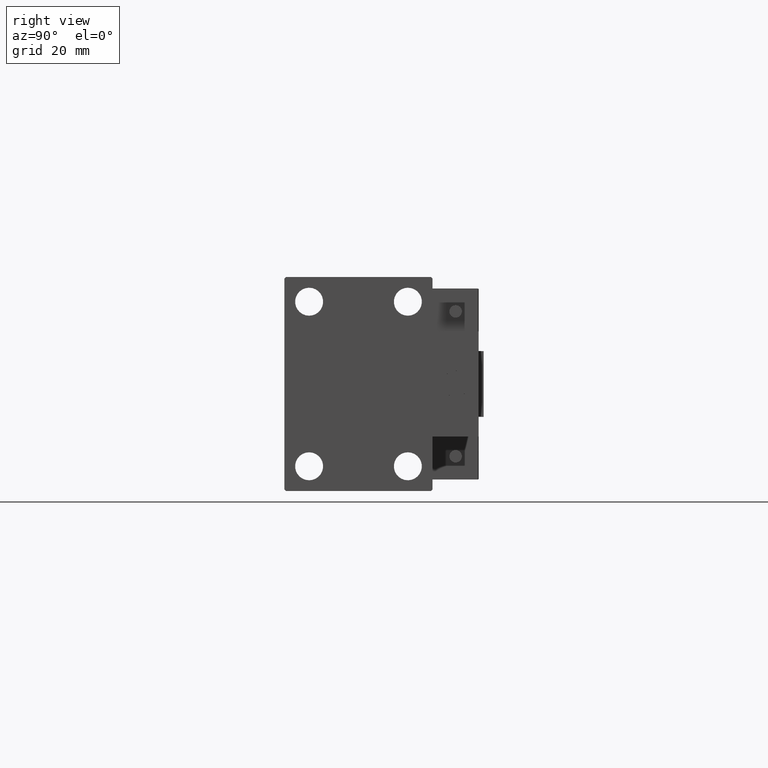
[diagram: clean part render]
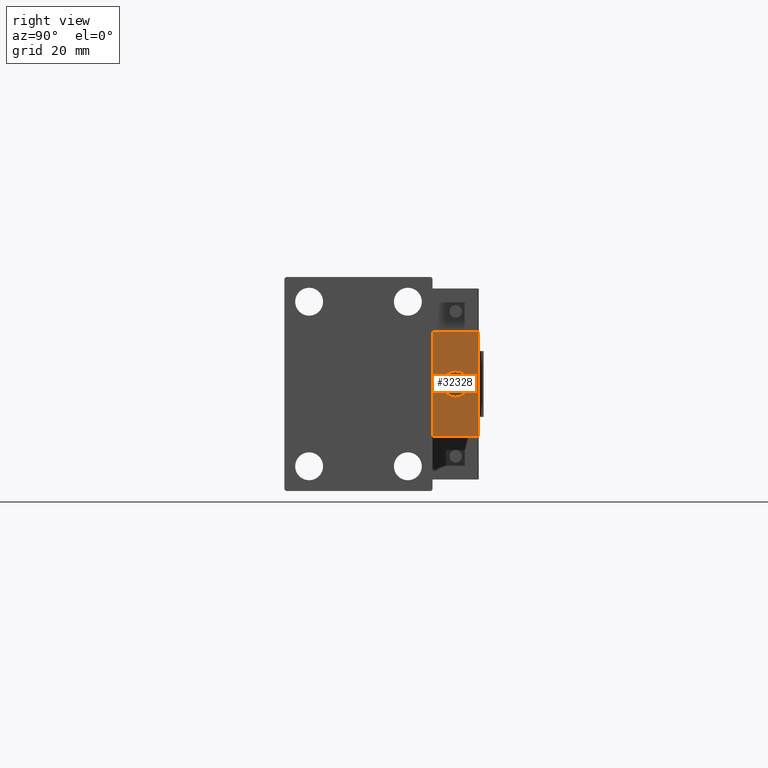
[diagram: same view with one face highlighted and labeled with its STEP entity id]
A machine part, right view. The second image highlights one B-rep face of the part: STEP entity #32328.
In plain terms, the highlighted planar face has unit normal (-1, 0, 0).
Its self-contained STEP definition (entity closure, byte-faithful):
#315 = CARTESIAN_POINT ( 'NONE',  ( 10.00000000000000000, 7.000000000000000000, 15.99999999999999289 ) ) ;
#864 = ORIENTED_EDGE ( 'NONE', *, *, #25652, .T. ) ;
#2336 = DIRECTION ( 'NONE',  ( 0.000000000000000000, 0.000000000000000000, -1.000000000000000000 ) ) ;
#2834 = DIRECTION ( 'NONE',  ( -1.000000000000000000, 0.000000000000000000, 0.000000000000000000 ) ) ;
#3563 = CIRCLE ( 'NONE', #5197, 4.000000000000000000 ) ;
#3848 = DIRECTION ( 'NONE',  ( 0.000000000000000000, -1.000000000000000000, 0.000000000000000000 ) ) ;
#4280 = VECTOR ( 'NONE', #12908, 1000.000000000000000 ) ;
#4984 = DIRECTION ( 'NONE',  ( -0.000000000000000000, 0.000000000000000000, 1.000000000000000000 ) ) ;
#5197 = AXIS2_PLACEMENT_3D ( 'NONE', #15035, #2834, #19360 ) ;
#8806 = CARTESIAN_POINT ( 'NONE',  ( 10.00000000000000000, 0.000000000000000000, 0.000000000000000000 ) ) ;
#9729 = VECTOR ( 'NONE', #30627, 1000.000000000000000 ) ;
#12141 = CARTESIAN_POINT ( 'NONE',  ( 10.00000000000000000, 4.898587196589412829E-16, -4.000000000000000000 ) ) ;
#12634 = FACE_OUTER_BOUND ( 'NONE', #21205, .T. ) ;
#12908 = DIRECTION ( 'NONE',  ( 0.000000000000000000, 0.000000000000000000, -1.000000000000000000 ) ) ;
#13143 = AXIS2_PLACEMENT_3D ( 'NONE', #34625, #31565, #42001 ) ;
#13807 = VERTEX_POINT ( 'NONE', #27082 ) ;
#13914 = CARTESIAN_POINT ( 'NONE',  ( 10.00000000000000000, 7.000000000000000000, -16.00000000000000711 ) ) ;
#15035 = CARTESIAN_POINT ( 'NONE',  ( 10.00000000000000000, 0.000000000000000000, 0.000000000000000000 ) ) ;
#16377 = VERTEX_POINT ( 'NONE', #20024 ) ;
#16620 = AXIS2_PLACEMENT_3D ( 'NONE', #8806, #39884, #4984 ) ;
#18989 = CARTESIAN_POINT ( 'NONE',  ( 10.00000000000000000, -7.000000000000000000, 15.99999999999999289 ) ) ;
#19360 = DIRECTION ( 'NONE',  ( 0.000000000000000000, 0.000000000000000000, 1.000000000000000000 ) ) ;
#20024 = CARTESIAN_POINT ( 'NONE',  ( 10.00000000000000000, 0.000000000000000000, 4.000000000000000000 ) ) ;
#21205 = EDGE_LOOP ( 'NONE', ( #37828, #42301, #22636, #29866 ) ) ;
#21650 = EDGE_CURVE ( 'NONE', #13807, #44799, #42065, .T. ) ;
#22107 = VECTOR ( 'NONE', #3848, 1000.000000000000000 ) ;
#22490 = EDGE_LOOP ( 'NONE', ( #31650, #864 ) ) ;
#22636 = ORIENTED_EDGE ( 'NONE', *, *, #46773, .F. ) ;
#23748 = VECTOR ( 'NONE', #2336, 1000.000000000000000 ) ;
#25652 = EDGE_CURVE ( 'NONE', #45892, #16377, #26175, .T. ) ;
#26175 = CIRCLE ( 'NONE', #13143, 4.000000000000000000 ) ;
#27082 = CARTESIAN_POINT ( 'NONE',  ( 10.00000000000000000, 7.000000000000000000, 15.99999999999999289 ) ) ;
#27106 = VERTEX_POINT ( 'NONE', #36017 ) ;
#27979 = LINE ( 'NONE', #32288, #4280 ) ;
#28199 = PLANE ( 'NONE',  #16620 ) ;
#28749 = VERTEX_POINT ( 'NONE', #13914 ) ;
#29332 = CARTESIAN_POINT ( 'NONE',  ( 10.00000000000000000, -7.000000000000000000, 15.99999999999999289 ) ) ;
#29866 = ORIENTED_EDGE ( 'NONE', *, *, #21650, .T. ) ;
#30627 = DIRECTION ( 'NONE',  ( 0.000000000000000000, -1.000000000000000000, 0.000000000000000000 ) ) ;
#31565 = DIRECTION ( 'NONE',  ( -1.000000000000000000, 0.000000000000000000, 0.000000000000000000 ) ) ;
#31650 = ORIENTED_EDGE ( 'NONE', *, *, #49189, .T. ) ;
#32288 = CARTESIAN_POINT ( 'NONE',  ( 10.00000000000000000, 7.000000000000000000, 15.99999999999999289 ) ) ;
#32328 = ADVANCED_FACE ( 'NONE', ( #35812, #12634 ), #28199, .F. ) ;
#34431 = LINE ( 'NONE', #49945, #22107 ) ;
#34625 = CARTESIAN_POINT ( 'NONE',  ( 10.00000000000000000, 0.000000000000000000, 0.000000000000000000 ) ) ;
#35812 = FACE_BOUND ( 'NONE', #22490, .T. ) ;
#36017 = CARTESIAN_POINT ( 'NONE',  ( 10.00000000000000000, -7.000000000000000000, -16.00000000000000711 ) ) ;
#37211 = LINE ( 'NONE', #29332, #23748 ) ;
#37828 = ORIENTED_EDGE ( 'NONE', *, *, #41553, .T. ) ;
#39884 = DIRECTION ( 'NONE',  ( -1.000000000000000000, 0.000000000000000000, -0.000000000000000000 ) ) ;
#41104 = EDGE_CURVE ( 'NONE', #28749, #27106, #34431, .T. ) ;
#41553 = EDGE_CURVE ( 'NONE', #44799, #27106, #37211, .T. ) ;
#42001 = DIRECTION ( 'NONE',  ( 0.000000000000000000, 0.000000000000000000, 1.000000000000000000 ) ) ;
#42065 = LINE ( 'NONE', #315, #9729 ) ;
#42301 = ORIENTED_EDGE ( 'NONE', *, *, #41104, .F. ) ;
#44799 = VERTEX_POINT ( 'NONE', #18989 ) ;
#45892 = VERTEX_POINT ( 'NONE', #12141 ) ;
#46773 = EDGE_CURVE ( 'NONE', #13807, #28749, #27979, .T. ) ;
#49189 = EDGE_CURVE ( 'NONE', #16377, #45892, #3563, .T. ) ;
#49945 = CARTESIAN_POINT ( 'NONE',  ( 10.00000000000000000, 7.000000000000000000, -16.00000000000000711 ) ) ;